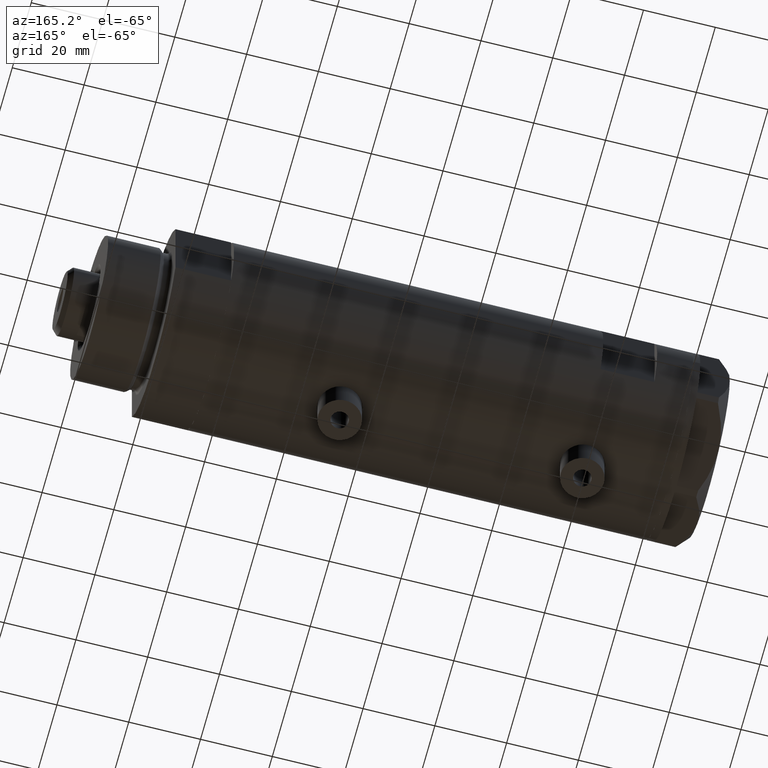
[diagram: clean part render]
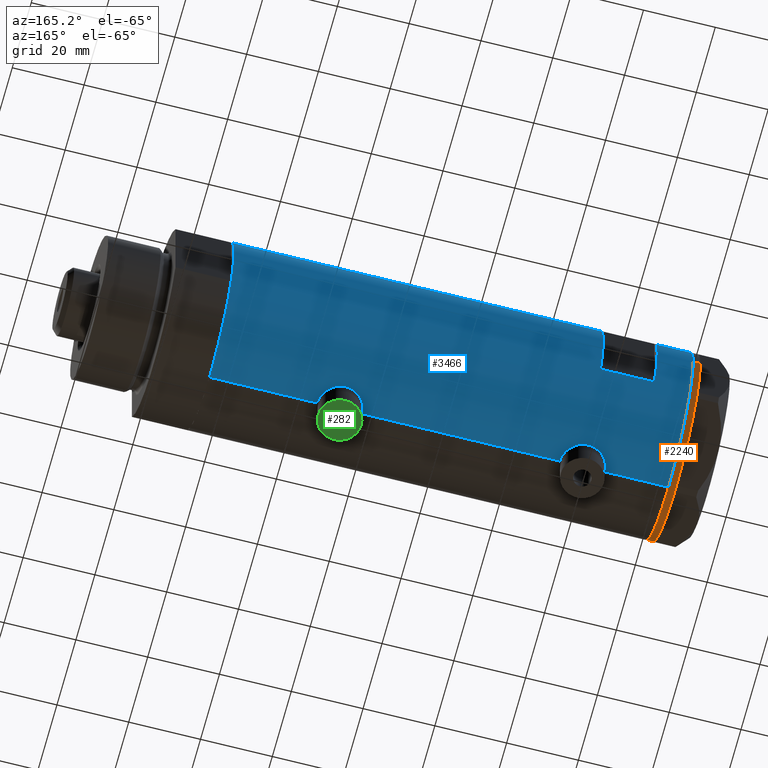
[diagram: same view with three faces highlighted in distinct colors, each labeled with its STEP entity id]
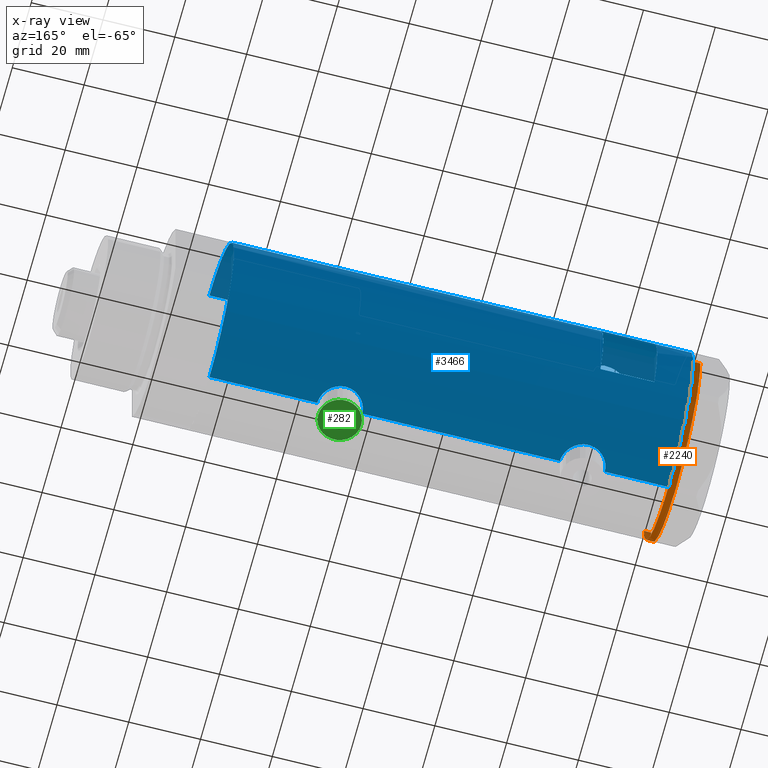
[diagram: x-ray of the same camera — body ghosted, the three highlighted faces saturated]
A machine part, auxiliary view with three faces highlighted in distinct colors.
The next image is the same camera in x-ray (body ghosted, the three faces saturated) — at least one of them is partly hidden behind the body in this view.
Their STEP definitions:

[orange] entity #2240 — the highlighted cylindrical surface (partial cylindrical patch) has radius 26 mm, axis along (-1, -0, 0).
#9 = EDGE_CURVE ( 'NONE', #4826, #2957, #760, .T. ) ;
#160 = ORIENTED_EDGE ( 'NONE', *, *, #1437, .T. ) ;
#162 = CARTESIAN_POINT ( 'NONE',  ( 0.000000000000000000, 0.000000000000000000, 0.000000000000000000 ) ) ;
#182 = DIRECTION ( 'NONE',  ( 1.000000000000000000, 0.000000000000000000, 0.000000000000000000 ) ) ;
#186 = EDGE_CURVE ( 'NONE', #3309, #3144, #4546, .T. ) ;
#212 = VERTEX_POINT ( 'NONE', #2292 ) ;
#262 = DIRECTION ( 'NONE',  ( 0.000000000000000000, 0.000000000000000000, -1.000000000000000000 ) ) ;
#362 = VECTOR ( 'NONE', #978, 1000.000000000000000 ) ;
#364 = AXIS2_PLACEMENT_3D ( 'NONE', #3634, #2841, #4871 ) ;
#410 = EDGE_CURVE ( 'NONE', #1890, #3309, #2145, .T. ) ;
#423 = CARTESIAN_POINT ( 'NONE',  ( -0.9999999999999089617, 25.98076211353316367, 0.000000000000000000 ) ) ;
#424 = VERTEX_POINT ( 'NONE', #4936 ) ;
#428 = DIRECTION ( 'NONE',  ( -1.000000000000000000, 0.000000000000000000, 0.000000000000000000 ) ) ;
#434 = EDGE_CURVE ( 'NONE', #2950, #1837, #3548, .T. ) ;
#460 = DIRECTION ( 'NONE',  ( 0.000000000000000000, 0.000000000000000000, -1.000000000000000000 ) ) ;
#558 = CARTESIAN_POINT ( 'NONE',  ( 22.35837924876908289, 13.27037593168378216, 0.000000000000000000 ) ) ;
#580 = CARTESIAN_POINT ( 'NONE',  ( -22.00000000000008171, 13.85640646055089498, 0.000000000000000000 ) ) ;
#624 = VERTEX_POINT ( 'NONE', #5006 ) ;
#662 = ORIENTED_EDGE ( 'NONE', *, *, #2180, .T. ) ;
#680 = CIRCLE ( 'NONE', #3625, 26.00000000000000355 ) ;
#743 = ORIENTED_EDGE ( 'NONE', *, *, #2911, .F. ) ;
#753 = VERTEX_POINT ( 'NONE', #4030 ) ;
#760 = CIRCLE ( 'NONE', #2949, 26.00000000000000355 ) ;
#777 = ORIENTED_EDGE ( 'NONE', *, *, #9, .T. ) ;
#870 = VERTEX_POINT ( 'NONE', #2152 ) ;
#918 = CARTESIAN_POINT ( 'NONE',  ( -22.35837924876937066, 13.27037593168329543, 0.000000000000000000 ) ) ;
#951 = CARTESIAN_POINT ( 'NONE',  ( -22.99999999999999289, 12.12435565298215856, 0.000000000000000000 ) ) ;
#978 = DIRECTION ( 'NONE',  ( -0.000000000000000000, -0.000000000000000000, 1.000000000000000000 ) ) ;
#1077 = CARTESIAN_POINT ( 'NONE',  ( 0.000000000000000000, 0.000000000000000000, 0.000000000000000000 ) ) ;
#1100 = AXIS2_PLACEMENT_3D ( 'NONE', #3776, #5024, #3477 ) ;
#1119 = AXIS2_PLACEMENT_3D ( 'NONE', #1253, #460, #428 ) ;
#1142 = CARTESIAN_POINT ( 'NONE',  ( 26.00000000000000355, 0.000000000000000000, -2.000000000000000000 ) ) ;
#1218 = CARTESIAN_POINT ( 'NONE',  ( 26.00000000000000355, 0.000000000000000000, 0.000000000000000000 ) ) ;
#1253 = CARTESIAN_POINT ( 'NONE',  ( 0.000000000000000000, 0.000000000000000000, 0.000000000000000000 ) ) ;
#1269 = EDGE_CURVE ( 'NONE', #424, #870, #3755, .T. ) ;
#1282 = EDGE_CURVE ( 'NONE', #2957, #5092, #3137, .T. ) ;
#1328 = DIRECTION ( 'NONE',  ( 0.000000000000000000, 0.000000000000000000, -1.000000000000000000 ) ) ;
#1402 = DIRECTION ( 'NONE',  ( 0.000000000000000000, 0.000000000000000000, -1.000000000000000000 ) ) ;
#1437 = EDGE_CURVE ( 'NONE', #624, #4826, #1760, .T. ) ;
#1505 = DIRECTION ( 'NONE',  ( -1.000000000000000000, 0.000000000000000000, 0.000000000000000000 ) ) ;
#1509 = ORIENTED_EDGE ( 'NONE', *, *, #434, .T. ) ;
#1528 = CARTESIAN_POINT ( 'NONE',  ( 22.67167229899213510, 12.72773645103923990, 0.000000000000000000 ) ) ;
#1635 = CARTESIAN_POINT ( 'NONE',  ( -26.00000000000000355, 3.184081677783118585E-15, 0.000000000000000000 ) ) ;
#1724 = EDGE_CURVE ( 'NONE', #2810, #424, #2465, .T. ) ;
#1730 = DIRECTION ( 'NONE',  ( -1.000000000000000000, 0.000000000000000000, 0.000000000000000000 ) ) ;
#1735 = DIRECTION ( 'NONE',  ( 0.000000000000000000, 0.000000000000000000, -1.000000000000000000 ) ) ;
#1754 = DIRECTION ( 'NONE',  ( -1.000000000000000000, 0.000000000000000000, 0.000000000000000000 ) ) ;
#1755 = CARTESIAN_POINT ( 'NONE',  ( -22.67167229899207115, 12.72773645103935003, 0.000000000000000000 ) ) ;
#1760 = LINE ( 'NONE', #3718, #362 ) ;
#1776 = AXIS2_PLACEMENT_3D ( 'NONE', #4255, #262, #1754 ) ;
#1807 = DIRECTION ( 'NONE',  ( -1.000000000000000000, 0.000000000000000000, 0.000000000000000000 ) ) ;
#1810 = CARTESIAN_POINT ( 'NONE',  ( 22.56942594318079642, 12.90986591935734218, 0.000000000000000000 ) ) ;
#1836 = DIRECTION ( 'NONE',  ( -1.000000000000000000, 0.000000000000000000, 0.000000000000000000 ) ) ;
#1837 = VERTEX_POINT ( 'NONE', #580 ) ;
#1890 = VERTEX_POINT ( 'NONE', #3527 ) ;
#2007 = DIRECTION ( 'NONE',  ( -0.000000000000000000, -0.000000000000000000, 1.000000000000000000 ) ) ;
#2074 = VERTEX_POINT ( 'NONE', #1218 ) ;
#2090 = ORIENTED_EDGE ( 'NONE', *, *, #410, .T. ) ;
#2092 = CARTESIAN_POINT ( 'NONE',  ( 0.3132930502238189252, 25.99811238272274139, 0.000000000000000000 ) ) ;
#2133 = AXIS2_PLACEMENT_3D ( 'NONE', #2181, #3775, #182 ) ;
#2145 = B_SPLINE_CURVE_WITH_KNOTS ( 'NONE', 3,
 ( #558, #4959, #1810, #1528 ),
 .UNSPECIFIED., .F., .F.,
 ( 4, 4 ),
 ( 0.000000000000000000, 1.000000000000000000 ),
 .UNSPECIFIED. ) ;
#2152 = CARTESIAN_POINT ( 'NONE',  ( 0.3132930502238189252, 25.99811238272274139, 0.000000000000000000 ) ) ;
#2180 = EDGE_CURVE ( 'NONE', #870, #2512, #2973, .T. ) ;
#2181 = CARTESIAN_POINT ( 'NONE',  ( 0.000000000000000000, 0.000000000000000000, -2.000000000000000000 ) ) ;
#2218 = ORIENTED_EDGE ( 'NONE', *, *, #3432, .T. ) ;
#2240 = ADVANCED_FACE ( 'NONE', ( #4521 ), #4895, .T. ) ;
#2292 = CARTESIAN_POINT ( 'NONE',  ( 21.99999999999987210, 13.85640646055121827, 0.000000000000000000 ) ) ;
#2361 = ORIENTED_EDGE ( 'NONE', *, *, #4921, .T. ) ;
#2403 = DIRECTION ( 'NONE',  ( -1.000000000000000000, 0.000000000000000000, 0.000000000000000000 ) ) ;
#2465 = CIRCLE ( 'NONE', #364, 26.00000000000000355 ) ;
#2500 = EDGE_CURVE ( 'NONE', #5092, #2950, #4196, .T. ) ;
#2512 = VERTEX_POINT ( 'NONE', #4470 ) ;
#2529 = CARTESIAN_POINT ( 'NONE',  ( 0.000000000000000000, 0.000000000000000000, 0.000000000000000000 ) ) ;
#2564 = AXIS2_PLACEMENT_3D ( 'NONE', #3587, #4743, #2403 ) ;
#2624 = CARTESIAN_POINT ( 'NONE',  ( 22.67167229899213510, 12.72773645103923990, 0.000000000000000000 ) ) ;
#2800 = ORIENTED_EDGE ( 'NONE', *, *, #1724, .T. ) ;
#2810 = VERTEX_POINT ( 'NONE', #423 ) ;
#2841 = DIRECTION ( 'NONE',  ( 0.000000000000000000, 0.000000000000000000, -1.000000000000000000 ) ) ;
#2905 = EDGE_CURVE ( 'NONE', #2512, #212, #3415, .T. ) ;
#2911 = EDGE_CURVE ( 'NONE', #753, #2074, #4427, .T. ) ;
#2949 = AXIS2_PLACEMENT_3D ( 'NONE', #4240, #1402, #1505 ) ;
#2950 = VERTEX_POINT ( 'NONE', #4553 ) ;
#2957 = VERTEX_POINT ( 'NONE', #951 ) ;
#2973 = CIRCLE ( 'NONE', #3059, 26.00000000000000355 ) ;
#3059 = AXIS2_PLACEMENT_3D ( 'NONE', #162, #3369, #1730 ) ;
#3078 = EDGE_CURVE ( 'NONE', #1837, #2810, #3579, .T. ) ;
#3087 = DIRECTION ( 'NONE',  ( 0.000000000000000000, 0.000000000000000000, -1.000000000000000000 ) ) ;
#3107 = ORIENTED_EDGE ( 'NONE', *, *, #2905, .T. ) ;
#3137 = CIRCLE ( 'NONE', #1119, 26.00000000000000355 ) ;
#3144 = VERTEX_POINT ( 'NONE', #4686 ) ;
#3213 = CARTESIAN_POINT ( 'NONE',  ( -22.67167229899207115, 12.72773645103935003, 0.000000000000000000 ) ) ;
#3309 = VERTEX_POINT ( 'NONE', #2624 ) ;
#3346 = ORIENTED_EDGE ( 'NONE', *, *, #186, .T. ) ;
#3369 = DIRECTION ( 'NONE',  ( 0.000000000000000000, 0.000000000000000000, -1.000000000000000000 ) ) ;
#3390 = CIRCLE ( 'NONE', #1776, 26.00000000000000355 ) ;
#3415 = CIRCLE ( 'NONE', #2564, 26.00000000000000355 ) ;
#3432 = EDGE_CURVE ( 'NONE', #212, #1890, #4202, .T. ) ;
#3477 = DIRECTION ( 'NONE',  ( -1.000000000000000000, 0.000000000000000000, 0.000000000000000000 ) ) ;
#3527 = CARTESIAN_POINT ( 'NONE',  ( 22.35837924876908289, 13.27037593168378216, 0.000000000000000000 ) ) ;
#3548 = CIRCLE ( 'NONE', #4719, 26.00000000000000355 ) ;
#3579 = CIRCLE ( 'NONE', #4157, 26.00000000000000355 ) ;
#3587 = CARTESIAN_POINT ( 'NONE',  ( 0.000000000000000000, 0.000000000000000000, 0.000000000000000000 ) ) ;
#3602 = DIRECTION ( 'NONE',  ( 0.000000000000000000, 0.000000000000000000, -1.000000000000000000 ) ) ;
#3625 = AXIS2_PLACEMENT_3D ( 'NONE', #4935, #1328, #4583 ) ;
#3634 = CARTESIAN_POINT ( 'NONE',  ( 0.000000000000000000, 0.000000000000000000, 0.000000000000000000 ) ) ;
#3718 = CARTESIAN_POINT ( 'NONE',  ( -26.00000000000000355, 3.184081677783118585E-15, -2.000000000000000000 ) ) ;
#3755 = B_SPLINE_CURVE_WITH_KNOTS ( 'NONE', 3,
 ( #4879, #4027, #4857, #2092 ),
 .UNSPECIFIED., .F., .F.,
 ( 4, 4 ),
 ( 0.000000000000000000, 1.000000000000000000 ),
 .UNSPECIFIED. ) ;
#3775 = DIRECTION ( 'NONE',  ( -0.000000000000000000, -0.000000000000000000, 1.000000000000000000 ) ) ;
#3776 = CARTESIAN_POINT ( 'NONE',  ( 0.000000000000000000, 0.000000000000000000, 0.000000000000000000 ) ) ;
#3989 = VECTOR ( 'NONE', #2007, 1000.000000000000000 ) ;
#4027 = CARTESIAN_POINT ( 'NONE',  ( -0.1044411259765276462, 26.00062917530480888, 0.000000000000000000 ) ) ;
#4030 = CARTESIAN_POINT ( 'NONE',  ( 26.00000000000000355, 0.000000000000000000, -2.000000000000000000 ) ) ;
#4073 = CARTESIAN_POINT ( 'NONE',  ( -22.56942594318084616, 12.90986591935725158, 0.000000000000000000 ) ) ;
#4157 = AXIS2_PLACEMENT_3D ( 'NONE', #2529, #1735, #1807 ) ;
#4196 = B_SPLINE_CURVE_WITH_KNOTS ( 'NONE', 3,
 ( #1755, #4073, #4548, #918 ),
 .UNSPECIFIED., .F., .F.,
 ( 4, 4 ),
 ( 0.000000000000000000, 1.000000000000000000 ),
 .UNSPECIFIED. ) ;
#4202 = CIRCLE ( 'NONE', #1100, 26.00000000000000355 ) ;
#4240 = CARTESIAN_POINT ( 'NONE',  ( 0.000000000000000000, 0.000000000000000000, 0.000000000000000000 ) ) ;
#4255 = CARTESIAN_POINT ( 'NONE',  ( 0.000000000000000000, 0.000000000000000000, 0.000000000000000000 ) ) ;
#4265 = EDGE_CURVE ( 'NONE', #624, #753, #680, .T. ) ;
#4280 = DIRECTION ( 'NONE',  ( -1.000000000000000000, 0.000000000000000000, 0.000000000000000000 ) ) ;
#4320 = ORIENTED_EDGE ( 'NONE', *, *, #3078, .T. ) ;
#4325 = ORIENTED_EDGE ( 'NONE', *, *, #1282, .T. ) ;
#4427 = LINE ( 'NONE', #1142, #3989 ) ;
#4464 = AXIS2_PLACEMENT_3D ( 'NONE', #1077, #3602, #4280 ) ;
#4470 = CARTESIAN_POINT ( 'NONE',  ( 0.9999999999999297229, 25.98076211353316722, 0.000000000000000000 ) ) ;
#4507 = ORIENTED_EDGE ( 'NONE', *, *, #4265, .F. ) ;
#4521 = FACE_OUTER_BOUND ( 'NONE', #5063, .T. ) ;
#4546 = CIRCLE ( 'NONE', #4464, 26.00000000000000355 ) ;
#4548 = CARTESIAN_POINT ( 'NONE',  ( -22.46498481720481877, 13.09076325594744006, 0.000000000000000000 ) ) ;
#4553 = CARTESIAN_POINT ( 'NONE',  ( -22.35837924876937066, 13.27037593168329543, 0.000000000000000000 ) ) ;
#4583 = DIRECTION ( 'NONE',  ( -1.000000000000000000, 0.000000000000000000, 0.000000000000000000 ) ) ;
#4620 = ORIENTED_EDGE ( 'NONE', *, *, #1269, .T. ) ;
#4686 = CARTESIAN_POINT ( 'NONE',  ( 22.99999999999982592, 12.12435565298247653, 0.000000000000000000 ) ) ;
#4719 = AXIS2_PLACEMENT_3D ( 'NONE', #5086, #3087, #1836 ) ;
#4743 = DIRECTION ( 'NONE',  ( 0.000000000000000000, 0.000000000000000000, -1.000000000000000000 ) ) ;
#4826 = VERTEX_POINT ( 'NONE', #1635 ) ;
#4857 = CARTESIAN_POINT ( 'NONE',  ( 0.1044411259763403238, 26.00062917530480888, 0.000000000000000000 ) ) ;
#4871 = DIRECTION ( 'NONE',  ( -1.000000000000000000, 0.000000000000000000, 0.000000000000000000 ) ) ;
#4879 = CARTESIAN_POINT ( 'NONE',  ( -0.3132930502240048320, 25.99811238272273783, 0.000000000000000000 ) ) ;
#4895 = CYLINDRICAL_SURFACE ( 'NONE', #2133, 26.00000000000000355 ) ;
#4921 = EDGE_CURVE ( 'NONE', #3144, #2074, #3390, .T. ) ;
#4935 = CARTESIAN_POINT ( 'NONE',  ( 0.000000000000000000, 0.000000000000000000, -2.000000000000000000 ) ) ;
#4936 = CARTESIAN_POINT ( 'NONE',  ( -0.3132930502240048320, 25.99811238272273783, 0.000000000000000000 ) ) ;
#4959 = CARTESIAN_POINT ( 'NONE',  ( 22.46498481720465179, 13.09076325594772960, 0.000000000000000000 ) ) ;
#5006 = CARTESIAN_POINT ( 'NONE',  ( -26.00000000000000355, 3.184081677783118585E-15, -2.000000000000000000 ) ) ;
#5024 = DIRECTION ( 'NONE',  ( 0.000000000000000000, 0.000000000000000000, -1.000000000000000000 ) ) ;
#5063 = EDGE_LOOP ( 'NONE', ( #4507, #160, #777, #4325, #5148, #1509, #4320, #2800, #4620, #662, #3107, #2218, #2090, #3346, #2361, #743 ) ) ;
#5086 = CARTESIAN_POINT ( 'NONE',  ( 0.000000000000000000, 0.000000000000000000, 0.000000000000000000 ) ) ;
#5092 = VERTEX_POINT ( 'NONE', #3213 ) ;
#5148 = ORIENTED_EDGE ( 'NONE', *, *, #2500, .T. ) ;

[blue] entity #3466 — the highlighted cylindrical surface (partial cylindrical patch) has radius 26 mm, axis along (-1, -0, 0).
#6 = CARTESIAN_POINT ( 'NONE',  ( 25.89067367629245808, 2.424883365422559223, -17.63594795494831402 ) ) ;
#10 = CARTESIAN_POINT ( 'NONE',  ( 24.95233689475078975, 7.306396477445178839, 42.73896186853335877 ) ) ;
#38 = CARTESIAN_POINT ( 'NONE',  ( 25.11550258961939974, 6.725017566862028673, 47.77928477806020169 ) ) ;
#65 = ORIENTED_EDGE ( 'NONE', *, *, #4133, .T. ) ;
#74 = EDGE_CURVE ( 'NONE', #3150, #839, #2864, .T. ) ;
#91 = DIRECTION ( 'NONE',  ( 0.000000000000000000, 0.000000000000000000, 1.000000000000000000 ) ) ;
#121 = CARTESIAN_POINT ( 'NONE',  ( -25.85406084573620689, 2.777003695811653738, 45.56412841326093854 ) ) ;
#148 = CARTESIAN_POINT ( 'NONE',  ( -26.00000000000000355, -2.813058302341337106E-16, 46.20000000000000284 ) ) ;
#167 = CARTESIAN_POINT ( 'NONE',  ( -25.33346170681503651, 5.849967696906715808, -25.44052947900492967 ) ) ;
#203 = VECTOR ( 'NONE', #2821, 1000.000000000000000 ) ;
#249 = EDGE_CURVE ( 'NONE', #3170, #482, #5122, .T. ) ;
#253 = CARTESIAN_POINT ( 'NONE',  ( 25.52465069878074644, 4.952713637311401129, 38.81255139184744962 ) ) ;
#296 = CARTESIAN_POINT ( 'NONE',  ( -25.95208098418916620, 1.628413954368980399, 33.90193207829285882 ) ) ;
#310 = CARTESIAN_POINT ( 'NONE',  ( 26.00000000000000355, 0.4983968644076020582, 36.95000000000000284 ) ) ;
#312 = EDGE_CURVE ( 'NONE', #3012, #4081, #2067, .T. ) ;
#317 = VERTEX_POINT ( 'NONE', #4563 ) ;
#328 = CARTESIAN_POINT ( 'NONE',  ( 25.17424625143662809, 6.506691718592095164, -28.51241626033727528 ) ) ;
#352 = CARTESIAN_POINT ( 'NONE',  ( 25.63006864069250668, 4.375159448492144776, -30.84654411758883086 ) ) ;
#360 = CARTESIAN_POINT ( 'NONE',  ( 25.20855488770173380, 6.367749707222643885, -20.77997776959044174 ) ) ;
#366 = DIRECTION ( 'NONE',  ( 0.000000000000000000, 0.000000000000000000, 1.000000000000000000 ) ) ;
#374 = CARTESIAN_POINT ( 'NONE',  ( -25.99999999999999289, 0.2043916521039002843, -33.90000000000000568 ) ) ;
#390 = CARTESIAN_POINT ( 'NONE',  ( 24.89484527721569762, 7.499778575171895945, 43.95449194517064484 ) ) ;
#391 = FACE_OUTER_BOUND ( 'NONE', #3397, .T. ) ;
#398 = CARTESIAN_POINT ( 'NONE',  ( -25.95208098418916975, 1.628413954368980843, -33.69806792170715681 ) ) ;
#414 = CARTESIAN_POINT ( 'NONE',  ( 25.72868876879096689, 3.768709330223694920, 50.95267486870066165 ) ) ;
#443 = CARTESIAN_POINT ( 'NONE',  ( 26.00000000000000355, 0.000000000000000000, -63.95000000000000995 ) ) ;
#467 = CARTESIAN_POINT ( 'NONE',  ( 25.99652140603931016, 0.4914164889130518965, 51.93796820480458365 ) ) ;
#475 = EDGE_CURVE ( 'NONE', #839, #2405, #3208, .T. ) ;
#482 = VERTEX_POINT ( 'NONE', #1568 ) ;
#500 = B_SPLINE_CURVE_WITH_KNOTS ( 'NONE', 3,
 ( #148, #1397, #4902, #3354, #950, #1782, #1304, #121, #1734, #4955, #4604, #2082, #1346, #974, #5007, #995, #2943, #1712, #4550, #2557, #4153, #3329, #4932, #1326, #2920, #554, #1756, #2677, #4200, #1446, #1887, #3812, #3026, #2262, #677, #3889, #1049, #2239, #296, #1475, #1858, #5029, #4281, #3133 ),
 .UNSPECIFIED., .F., .F.,
 ( 4, 2, 2, 2, 2, 2, 2, 2, 2, 2, 2, 2, 2, 2, 2, 2, 2, 2, 2, 2, 2, 4 ),
 ( 2.732276935479321607E-19, 0.001225774033668403139, 0.001838661050502602649, 0.002451548067336802375, 0.003677322101005202262, 0.004903096134673601281, 0.006128870168342001601, 0.007354644202010401054, 0.007967531218844600346, 0.008580418235678800506, 0.009806192269347199092, 0.01103196630301559768, 0.01225774033668399626, 0.01287062735351819469, 0.01348351437035239485, 0.01409640138718659501, 0.01470928840402079343, 0.01593506243768920069, 0.01716083647135761142, 0.01838661050502602215, 0.01899949752186022578, 0.01961238453869442941 ),
 .UNSPECIFIED. ) ;
#524 = CIRCLE ( 'NONE', #1531, 26.00000000000000355 ) ;
#554 = CARTESIAN_POINT ( 'NONE',  ( -25.36894112891956965, 5.694149517195234544, 37.36517494801692862 ) ) ;
#564 = VERTEX_POINT ( 'NONE', #3450 ) ;
#571 = VECTOR ( 'NONE', #2346, 1000.000000000000000 ) ;
#643 = CARTESIAN_POINT ( 'NONE',  ( 25.72923282622329211, 3.765147152416744802, 37.94514424215291371 ) ) ;
#666 = CARTESIAN_POINT ( 'NONE',  ( 25.98569222077104257, 0.9879514382926377625, 36.99918153312438562 ) ) ;
#667 = DIRECTION ( 'NONE',  ( 0.000000000000000000, 0.000000000000000000, 1.000000000000000000 ) ) ;
#673 = VECTOR ( 'NONE', #2517, 1000.000000000000000 ) ;
#677 = CARTESIAN_POINT ( 'NONE',  ( -25.72087293759780380, 3.814831448865741770, 34.98261705172143365 ) ) ;
#736 = CARTESIAN_POINT ( 'NONE',  ( -25.38875076695535782, 5.605452563035137281, -30.42185900824106426 ) ) ;
#741 = CARTESIAN_POINT ( 'NONE',  ( 25.03487248886524341, 7.018875226450789206, -27.40423217392064359 ) ) ;
#766 = CARTESIAN_POINT ( 'NONE',  ( 24.89484527721569052, 7.499778575171893280, -25.24550805482937932 ) ) ;
#774 = CARTESIAN_POINT ( 'NONE',  ( 25.11550258961939619, 6.725017566862034002, -21.42071522193981181 ) ) ;
#790 = CARTESIAN_POINT ( 'NONE',  ( -25.85449082491264861, 2.772892880050691122, -33.26609297485325101 ) ) ;
#796 = VERTEX_POINT ( 'NONE', #1313 ) ;
#801 = CARTESIAN_POINT ( 'NONE',  ( 26.00000000000001066, 0.2455784580650491045, -17.25000000000000355 ) ) ;
#839 = VERTEX_POINT ( 'NONE', #3440 ) ;
#881 = CARTESIAN_POINT ( 'NONE',  ( 25.99999999999999645, 0.2455784580650500204, 51.94999999999998863 ) ) ;
#894 = DIRECTION ( 'NONE',  ( 1.000000000000000000, 0.000000000000000000, 0.000000000000000000 ) ) ;
#930 = B_SPLINE_CURVE_WITH_KNOTS ( 'NONE', 3,
 ( #3057, #3377, #3486, #4282, #4662, #1447, #5030, #1833, #2165, #3027, #1783, #3452, #1021, #976, #3760, #167, #2979, #2263, #4581, #3409, #2582, #3004, #4605, #996, #4628, #5054, #736, #3938, #4707, #2712, #3189, #3584, #3164, #1499, #4367, #4817, #790, #2788, #398, #1219, #4761, #3106, #374, #3556 ),
 .UNSPECIFIED., .F., .F.,
 ( 4, 2, 2, 2, 2, 2, 2, 2, 2, 2, 2, 2, 2, 2, 2, 2, 2, 2, 2, 2, 2, 4 ),
 ( 9.607684875373755967E-19, 0.001225774033668407042, 0.001838661050502609588, 0.002451548067336812350, 0.003677322101005213971, 0.004903096134673616026, 0.006128870168342016346, 0.007354644202010416666, 0.007967531218844617694, 0.008580418235678816119, 0.009806192269347225113, 0.01103196630301563584, 0.01225774033668404484, 0.01287062735351825020, 0.01348351437035245383, 0.01409640138718665919, 0.01470928840402086456, 0.01593506243768925273, 0.01716083647135764612, 0.01838661050502603603, 0.01899949752186023272, 0.01961238453869442941 ),
 .UNSPECIFIED. ) ;
#947 = DIRECTION ( 'NONE',  ( -0.000000000000000000, -0.000000000000000000, -1.000000000000000000 ) ) ;
#950 = CARTESIAN_POINT ( 'NONE',  ( -25.95015815577423268, 1.621168830448741938, 45.98958570439819482 ) ) ;
#974 = CARTESIAN_POINT ( 'NONE',  ( -25.42927140605241121, 5.422776733968213136, 43.08443996013281918 ) ) ;
#976 = CARTESIAN_POINT ( 'NONE',  ( -25.42927140605240766, 5.422776733968210472, -24.51556003986717513 ) ) ;
#995 = CARTESIAN_POINT ( 'NONE',  ( -25.33346170681504717, 5.849967696906719361, 42.15947052099510017 ) ) ;
#996 = CARTESIAN_POINT ( 'NONE',  ( -25.28673619335055633, 6.048783215285168602, -29.27550990348179027 ) ) ;
#1021 = CARTESIAN_POINT ( 'NONE',  ( -25.52242378584899640, 4.965907353613392416, -23.83280397078263491 ) ) ;
#1049 = CARTESIAN_POINT ( 'NONE',  ( -25.85449082491264861, 2.772892880050687126, 34.33390702514679305 ) ) ;
#1064 = CARTESIAN_POINT ( 'NONE',  ( 25.38132706741445688, 5.649034551923787895, 39.49268047185955766 ) ) ;
#1085 = DIRECTION ( 'NONE',  ( -1.000000000000000000, -5.329070518200751394E-15, 0.000000000000000000 ) ) ;
#1098 = CARTESIAN_POINT ( 'NONE',  ( 25.89067367629246164, 2.424883365422555670, 51.56405204505168172 ) ) ;
#1125 = VECTOR ( 'NONE', #4927, 1000.000000000000000 ) ;
#1144 = CARTESIAN_POINT ( 'NONE',  ( 25.38132706741445332, 5.649034551923782566, -29.70731952814044874 ) ) ;
#1155 = CARTESIAN_POINT ( 'NONE',  ( 24.89471231507667071, 7.500219916954787180, 44.93878226883029470 ) ) ;
#1169 = CARTESIAN_POINT ( 'NONE',  ( 24.95233689475078265, 7.306396477445174398, -26.46103813146666184 ) ) ;
#1202 = CARTESIAN_POINT ( 'NONE',  ( 25.52590365620542556, 4.955152228772148781, -19.09876272411762343 ) ) ;
#1210 = CARTESIAN_POINT ( 'NONE',  ( 24.97016856345953073, 7.245430721349219283, 42.49696959080609560 ) ) ;
#1219 = CARTESIAN_POINT ( 'NONE',  ( -25.98057228346869252, 1.024901789261879914, -33.81880585854828070 ) ) ;
#1275 = AXIS2_PLACEMENT_3D ( 'NONE', #2759, #366, #3158 ) ;
#1304 = CARTESIAN_POINT ( 'NONE',  ( -25.90661719257679252, 2.209805098346976138, 45.79988745781523107 ) ) ;
#1313 = CARTESIAN_POINT ( 'NONE',  ( -26.00000000000000355, 3.184077527313362130E-15, 33.70000000000000995 ) ) ;
#1326 = CARTESIAN_POINT ( 'NONE',  ( -25.28673619335055278, 6.048783215285168602, 38.32449009651820404 ) ) ;
#1337 = ORIENTED_EDGE ( 'NONE', *, *, #1812, .T. ) ;
#1346 = CARTESIAN_POINT ( 'NONE',  ( -25.52242378584899285, 4.965907353613394193, 43.76719602921738783 ) ) ;
#1397 = CARTESIAN_POINT ( 'NONE',  ( -26.00000000000000711, 0.4145874687851189289, 46.20000000000000995 ) ) ;
#1446 = CARTESIAN_POINT ( 'NONE',  ( -25.49884629689154281, 5.081547904122033721, 36.30560194303910748 ) ) ;
#1447 = CARTESIAN_POINT ( 'NONE',  ( -25.92257874449350297, 2.014648337067150408, -21.73003581636323389 ) ) ;
#1448 = DIRECTION ( 'NONE',  ( 1.000000000000000000, -5.329070518200751394E-15, 0.000000000000000000 ) ) ;
#1475 = CARTESIAN_POINT ( 'NONE',  ( -25.98057228346870673, 1.024901789261881913, 33.78119414145175625 ) ) ;
#1478 = CARTESIAN_POINT ( 'NONE',  ( 0.000000000000000000, 0.000000000000000000, 53.94999999999999574 ) ) ;
#1489 = ORIENTED_EDGE ( 'NONE', *, *, #4915, .F. ) ;
#1499 = CARTESIAN_POINT ( 'NONE',  ( -25.67176285215958842, 4.128807479817787396, -32.35991598451124673 ) ) ;
#1512 = DIRECTION ( 'NONE',  ( 1.000000000000000000, 0.000000000000000000, 0.000000000000000000 ) ) ;
#1526 = CARTESIAN_POINT ( 'NONE',  ( 26.00000000000000355, 0.000000000000000000, -63.95000000000000995 ) ) ;
#1531 = AXIS2_PLACEMENT_3D ( 'NONE', #2661, #2121, #1085 ) ;
#1538 = CARTESIAN_POINT ( 'NONE',  ( 25.72923282622328855, 3.765147152416742138, -31.25485575784708203 ) ) ;
#1562 = CARTESIAN_POINT ( 'NONE',  ( 25.94484652078418208, 1.709678645892019899, -32.05665346759175804 ) ) ;
#1568 = CARTESIAN_POINT ( 'NONE',  ( 26.00000000000000355, -3.975025925197986111E-20, 51.95000000000000284 ) ) ;
#1573 = CARTESIAN_POINT ( 'NONE',  ( 25.08669247833291394, 6.831361936037319893, 47.55537739403791164 ) ) ;
#1591 = CARTESIAN_POINT ( 'NONE',  ( 25.59685363299822569, 4.579266302355748053, -18.79027931897347514 ) ) ;
#1672 = CARTESIAN_POINT ( 'NONE',  ( -26.00000000000000355, 3.184081677783118585E-15, -63.95000000000000995 ) ) ;
#1691 = CARTESIAN_POINT ( 'NONE',  ( -12.12435565298214080, 23.00000000000000355, -63.95000000000000995 ) ) ;
#1694 = EDGE_CURVE ( 'NONE', #2405, #3170, #2478, .T. ) ;
#1712 = CARTESIAN_POINT ( 'NONE',  ( -25.28915991580759837, 6.038390257328908106, 41.57552651146907863 ) ) ;
#1734 = CARTESIAN_POINT ( 'NONE',  ( -25.81251897318925614, 3.135439098787738743, 45.37199178085171525 ) ) ;
#1737 = CARTESIAN_POINT ( 'NONE',  ( -26.00000000000000355, 3.184081677783118585E-15, -63.95000000000000995 ) ) ;
#1749 = ORIENTED_EDGE ( 'NONE', *, *, #4517, .F. ) ;
#1756 = CARTESIAN_POINT ( 'NONE',  ( -25.38875076695534716, 5.605452563035134617, 37.17814099175895848 ) ) ;
#1782 = CARTESIAN_POINT ( 'NONE',  ( -25.92257874449351007, 2.014648337067150408, 45.86996418363678174 ) ) ;
#1783 = CARTESIAN_POINT ( 'NONE',  ( -25.67095236150574067, 4.133649689219789813, -22.94464771725742125 ) ) ;
#1812 = EDGE_CURVE ( 'NONE', #3150, #3600, #4818, .T. ) ;
#1822 = EDGE_LOOP ( 'NONE', ( #1749, #1489, #1985, #4222 ) ) ;
#1833 = CARTESIAN_POINT ( 'NONE',  ( -25.85406084573622110, 2.777003695811654183, -22.03587158673905222 ) ) ;
#1845 = CARTESIAN_POINT ( 'NONE',  ( 0.000000000000000000, 0.000000000000000000, 63.95000000000000995 ) ) ;
#1848 = EDGE_CURVE ( 'NONE', #3786, #796, #500, .T. ) ;
#1858 = CARTESIAN_POINT ( 'NONE',  ( -25.98789693408479451, 0.8193301824841956460, 33.75051019734654290 ) ) ;
#1887 = CARTESIAN_POINT ( 'NONE',  ( -25.52275868012767646, 4.960454986366448438, 36.14238370593368188 ) ) ;
#1899 = CARTESIAN_POINT ( 'NONE',  ( 25.92799636947105313, 1.948138538329398317, 37.20322312211785487 ) ) ;
#1913 = LINE ( 'NONE', #1526, #571 ) ;
#1922 = CARTESIAN_POINT ( 'NONE',  ( 25.11254978876590016, 6.737777305585156640, -28.08025351746412213 ) ) ;
#1927 = CARTESIAN_POINT ( 'NONE',  ( 25.11254978876589661, 6.737777305585160192, 41.11974648253589493 ) ) ;
#1943 = VECTOR ( 'NONE', #3356, 1000.000000000000000 ) ;
#1955 = CARTESIAN_POINT ( 'NONE',  ( 24.90976107960111818, 7.450765568638821890, -23.76117130648535891 ) ) ;
#1961 = CARTESIAN_POINT ( 'NONE',  ( 25.98255381630415783, 0.9836221648041323373, -17.31066901941807501 ) ) ;
#1969 = CARTESIAN_POINT ( 'NONE',  ( 24.90951684770588059, 7.451587374037537792, 43.46604395478804861 ) ) ;
#1972 = ORIENTED_EDGE ( 'NONE', *, *, #3723, .T. ) ;
#1985 = ORIENTED_EDGE ( 'NONE', *, *, #4411, .F. ) ;
#1989 = CARTESIAN_POINT ( 'NONE',  ( 25.17636585680006078, 6.493453152855879651, -20.98900750337198318 ) ) ;
#1994 = CARTESIAN_POINT ( 'NONE',  ( 25.38117076385347914, 5.641057083563588925, 49.39856579741849174 ) ) ;
#2013 = ORIENTED_EDGE ( 'NONE', *, *, #1848, .F. ) ;
#2017 = CARTESIAN_POINT ( 'NONE',  ( 25.78997056644825392, 3.329333406239039839, 51.18834808433847883 ) ) ;
#2018 = CARTESIAN_POINT ( 'NONE',  ( 12.12435565298213724, 23.00000000000000355, 38.94999999999999574 ) ) ;
#2027 = VECTOR ( 'NONE', #3709, 1000.000000000000000 ) ;
#2029 = AXIS2_PLACEMENT_3D ( 'NONE', #1845, #667, #1512 ) ;
#2067 = LINE ( 'NONE', #1691, #4804 ) ;
#2082 = CARTESIAN_POINT ( 'NONE',  ( -25.57189498399055338, 4.707763994471528157, 44.08090281055548587 ) ) ;
#2121 = DIRECTION ( 'NONE',  ( -0.000000000000000000, -0.000000000000000000, 1.000000000000000000 ) ) ;
#2156 = EDGE_CURVE ( 'NONE', #564, #796, #2551, .T. ) ;
#2165 = CARTESIAN_POINT ( 'NONE',  ( -25.81251897318926680, 3.135439098787736523, -22.22800821914827907 ) ) ;
#2210 = VERTEX_POINT ( 'NONE', #2914 ) ;
#2228 = CARTESIAN_POINT ( 'NONE',  ( 26.00000000000000355, -3.975025925197986111E-20, 51.95000000000000284 ) ) ;
#2239 = CARTESIAN_POINT ( 'NONE',  ( -25.92432690655986960, 2.018143994254070872, 34.02070577177285315 ) ) ;
#2252 = CARTESIAN_POINT ( 'NONE',  ( 25.63006864069250668, 4.375159448492148329, 38.35345588241117554 ) ) ;
#2262 = CARTESIAN_POINT ( 'NONE',  ( -25.67176285215957421, 4.128807479817785620, 35.24008401548878311 ) ) ;
#2263 = CARTESIAN_POINT ( 'NONE',  ( -25.28915991580759837, 6.038390257328908994, -26.02447348853095122 ) ) ;
#2276 = CARTESIAN_POINT ( 'NONE',  ( 25.59528664075984850, 4.573671112500303337, 38.50090496483275615 ) ) ;
#2317 = CARTESIAN_POINT ( 'NONE',  ( 25.97197502027376004, 1.230965554787593952, 51.85240824498373513 ) ) ;
#2337 = CARTESIAN_POINT ( 'NONE',  ( 25.27545867390325185, 6.096774941222090405, 48.82477406957965371 ) ) ;
#2346 = DIRECTION ( 'NONE',  ( 0.000000000000000000, 0.000000000000000000, 1.000000000000000000 ) ) ;
#2351 = CARTESIAN_POINT ( 'NONE',  ( 25.92799636947105668, 1.948138538329396319, -31.99677687788214797 ) ) ;
#2359 = CARTESIAN_POINT ( 'NONE',  ( 25.31017500740586357, 5.951503630041860227, 49.02049592637404629 ) ) ;
#2386 = CARTESIAN_POINT ( 'NONE',  ( 25.41763780493360514, 5.474943943663459933, -19.61823686211066686 ) ) ;
#2405 = VERTEX_POINT ( 'NONE', #4358 ) ;
#2410 = CARTESIAN_POINT ( 'NONE',  ( 25.72868876879096689, 3.768709330223691811, -18.24732513129934830 ) ) ;
#2413 = CARTESIAN_POINT ( 'NONE',  ( 25.52590365620542912, 4.955152228772151446, 50.10123727588237585 ) ) ;
#2449 = ORIENTED_EDGE ( 'NONE', *, *, #3181, .F. ) ;
#2478 = LINE ( 'NONE', #443, #203 ) ;
#2517 = DIRECTION ( 'NONE',  ( 0.000000000000000000, 0.000000000000000000, 1.000000000000000000 ) ) ;
#2538 = DIRECTION ( 'NONE',  ( 0.000000000000000000, 0.000000000000000000, 1.000000000000000000 ) ) ;
#2551 = LINE ( 'NONE', #3752, #1125 ) ;
#2557 = CARTESIAN_POINT ( 'NONE',  ( -25.24766879991037172, 6.209837761082653174, 40.76849569029695886 ) ) ;
#2582 = CARTESIAN_POINT ( 'NONE',  ( -25.23766275406408965, 6.249830297096024445, -27.23808095444882582 ) ) ;
#2625 = VECTOR ( 'NONE', #947, 1000.000000000000000 ) ;
#2650 = CARTESIAN_POINT ( 'NONE',  ( 25.98569222077105323, 0.9879514382926379845, -32.20081846687561722 ) ) ;
#2661 = CARTESIAN_POINT ( 'NONE',  ( 0.000000000000000000, 0.000000000000000000, 38.94999999999999574 ) ) ;
#2677 = CARTESIAN_POINT ( 'NONE',  ( -25.43062364804612230, 5.412314182902753679, 36.81772351419071043 ) ) ;
#2712 = CARTESIAN_POINT ( 'NONE',  ( -25.49884629689154636, 5.081547904122037274, -31.29439805696091526 ) ) ;
#2718 = CARTESIAN_POINT ( 'NONE',  ( -26.00000000000000355, 3.184081677783118585E-15, 63.95000000000000995 ) ) ;
#2737 = CARTESIAN_POINT ( 'NONE',  ( 24.96662810169870284, 7.257932614256869641, 46.40297309526737024 ) ) ;
#2759 = CARTESIAN_POINT ( 'NONE',  ( 0.000000000000000000, 0.000000000000000000, -63.95000000000000995 ) ) ;
#2769 = CARTESIAN_POINT ( 'NONE',  ( 25.59528664075984139, 4.573671112500301561, -30.69909503516727156 ) ) ;
#2788 = CARTESIAN_POINT ( 'NONE',  ( -25.92432690655986960, 2.018143994254072648, -33.57929422822715537 ) ) ;
#2804 = CARTESIAN_POINT ( 'NONE',  ( 25.97197502027376004, 1.230965554787594396, -17.34759175501625350 ) ) ;
#2811 = ORIENTED_EDGE ( 'NONE', *, *, #249, .F. ) ;
#2821 = DIRECTION ( 'NONE',  ( 0.000000000000000000, 0.000000000000000000, 1.000000000000000000 ) ) ;
#2864 = LINE ( 'NONE', #3299, #2027 ) ;
#2910 = LINE ( 'NONE', #4515, #673 ) ;
#2914 = CARTESIAN_POINT ( 'NONE',  ( 26.00000000000000355, 0.000000000000000000, 63.95000000000000995 ) ) ;
#2920 = CARTESIAN_POINT ( 'NONE',  ( -25.31518616157687163, 5.930210831981637121, 37.93412882792974727 ) ) ;
#2943 = CARTESIAN_POINT ( 'NONE',  ( -25.31738333113901973, 5.918941409682879851, 41.96757922472325220 ) ) ;
#2979 = CARTESIAN_POINT ( 'NONE',  ( -25.31738333113901263, 5.918941409682878962, -25.63242077527679186 ) ) ;
#2981 = LINE ( 'NONE', #1737, #1943 ) ;
#3004 = CARTESIAN_POINT ( 'NONE',  ( -25.23757896588370642, 6.250168635417626462, -28.05675308410501501 ) ) ;
#3012 = VERTEX_POINT ( 'NONE', #4446 ) ;
#3021 = CARTESIAN_POINT ( 'NONE',  ( 26.00000000000001776, 0.4983968644076017251, -32.25000000000001421 ) ) ;
#3026 = CARTESIAN_POINT ( 'NONE',  ( -25.59680708126580129, 4.563450671387941249, 35.67456050020032166 ) ) ;
#3027 = CARTESIAN_POINT ( 'NONE',  ( -25.72105193281916513, 3.813738527046907745, -22.68166308900567785 ) ) ;
#3034 = ORIENTED_EDGE ( 'NONE', *, *, #1694, .F. ) ;
#3040 = CARTESIAN_POINT ( 'NONE',  ( 25.88814720404043257, 2.420758939209243898, 37.34711713171546421 ) ) ;
#3057 = CARTESIAN_POINT ( 'NONE',  ( -26.00000000000000355, 9.891741702313250758E-16, -21.40000000000000568 ) ) ;
#3060 = VERTEX_POINT ( 'NONE', #4528 ) ;
#3070 = CARTESIAN_POINT ( 'NONE',  ( 25.48882460966379782, 5.133289275481216940, 38.97656476402091386 ) ) ;
#3077 = FACE_BOUND ( 'NONE', #1822, .T. ) ;
#3086 = DIRECTION ( 'NONE',  ( -0.000000000000000000, -0.000000000000000000, -1.000000000000000000 ) ) ;
#3098 = ORIENTED_EDGE ( 'NONE', *, *, #475, .F. ) ;
#3106 = CARTESIAN_POINT ( 'NONE',  ( -25.99759026373432391, 0.4091325989570628874, -33.88999890044899388 ) ) ;
#3119 = CARTESIAN_POINT ( 'NONE',  ( 25.86510134953875450, 2.654921787384014298, 37.43132938305095792 ) ) ;
#3133 = CARTESIAN_POINT ( 'NONE',  ( -26.00000000000000355, 3.184077527313362130E-15, 33.70000000000000995 ) ) ;
#3145 = CARTESIAN_POINT ( 'NONE',  ( 25.48882460966380492, 5.133289275481214275, -30.22343523597908188 ) ) ;
#3150 = VERTEX_POINT ( 'NONE', #3784 ) ;
#3153 = CARTESIAN_POINT ( 'NONE',  ( 25.17424625143662453, 6.506691718592097828, 40.68758373966274178 ) ) ;
#3158 = DIRECTION ( 'NONE',  ( 1.000000000000000000, 0.000000000000000000, 0.000000000000000000 ) ) ;
#3164 = CARTESIAN_POINT ( 'NONE',  ( -25.59680708126580129, 4.563450671387943025, -31.92543949979970108 ) ) ;
#3170 = VERTEX_POINT ( 'NONE', #3859 ) ;
#3172 = CARTESIAN_POINT ( 'NONE',  ( 25.52465069878074999, 4.952713637311402906, -30.38744860815256388 ) ) ;
#3181 = EDGE_CURVE ( 'NONE', #564, #317, #930, .T. ) ;
#3182 = CARTESIAN_POINT ( 'NONE',  ( 25.20855488770172315, 6.367749707222637667, 48.42002223040957887 ) ) ;
#3189 = CARTESIAN_POINT ( 'NONE',  ( -25.52275868012767646, 4.960454986366448438, -31.45761629406634086 ) ) ;
#3208 = B_SPLINE_CURVE_WITH_KNOTS ( 'NONE', 3,
 ( #3423, #3021, #2650, #1562, #2351, #5146, #5180, #3537, #1538, #352, #2769, #3172, #3145, #1144, #4745, #328, #1922, #741, #4349, #4769, #1169, #4372, #766, #3978, #1955, #3923, #3567, #4377, #774, #1989, #360, #5187, #3593, #4774, #2386, #1202, #1591, #2410, #3983, #6, #4800, #2804, #1961, #4408, #801, #4004 ),
 .UNSPECIFIED., .F., .F.,
 ( 4, 2, 2, 2, 2, 2, 2, 2, 2, 2, 2, 2, 2, 2, 2, 2, 2, 2, 2, 2, 2, 2, 4 ),
 ( 6.413325872240687501E-19, 0.001473395154583055080, 0.002210092731874579910, 0.002946790309166104523, 0.004420185463749155483, 0.005156883041040686601, 0.005893580618332217719, 0.007366975772915269546, 0.008840370927498323109, 0.009577068504789844686, 0.01031376608208136626, 0.01178716123666441982, 0.01326055639124747165, 0.01473395154583052175, 0.01547064912312205720, 0.01620734670041358919, 0.01694404427770512117, 0.01768074185499665316, 0.01915413700957970325, 0.02062753216416275681, 0.02210092731874581037, 0.02283762489603733542, 0.02357432247332886047 ),
 .UNSPECIFIED. ) ;
#3217 = AXIS2_PLACEMENT_3D ( 'NONE', #1478, #3086, #1448 ) ;
#3241 = EDGE_CURVE ( 'NONE', #482, #2210, #1913, .T. ) ;
#3262 = CARTESIAN_POINT ( 'NONE',  ( 25.98255381630415428, 0.9836221648041301169, 51.88933098058191007 ) ) ;
#3299 = CARTESIAN_POINT ( 'NONE',  ( 26.00000000000000355, 0.000000000000000000, -63.95000000000000995 ) ) ;
#3329 = CARTESIAN_POINT ( 'NONE',  ( -25.23757896588370286, 6.250168635417627350, 39.54324691589501128 ) ) ;
#3354 = CARTESIAN_POINT ( 'NONE',  ( -25.96182217530152769, 1.422664245316465070, 46.03935273092390190 ) ) ;
#3356 = DIRECTION ( 'NONE',  ( 0.000000000000000000, 0.000000000000000000, 1.000000000000000000 ) ) ;
#3376 = CARTESIAN_POINT ( 'NONE',  ( 0.000000000000000000, 0.000000000000000000, -63.95000000000000995 ) ) ;
#3377 = CARTESIAN_POINT ( 'NONE',  ( -26.00000000000000711, 0.4145874687851189844, -21.40000000000000924 ) ) ;
#3397 = EDGE_LOOP ( 'NONE', ( #1337, #1972, #2449, #3854, #2013, #65, #4957, #4339, #2811, #3034, #3098, #5157 ) ) ;
#3405 = CARTESIAN_POINT ( 'NONE',  ( 12.12435565298214080, 23.00000000000000355, -63.95000000000000995 ) ) ;
#3409 = CARTESIAN_POINT ( 'NONE',  ( -25.24766879991036816, 6.209837761082655838, -26.83150430970304257 ) ) ;
#3423 = CARTESIAN_POINT ( 'NONE',  ( 26.00000000000000355, 6.604469597105595072E-16, -32.25000000000000000 ) ) ;
#3440 = CARTESIAN_POINT ( 'NONE',  ( 26.00000000000000355, 6.604469597105595072E-16, -32.25000000000000000 ) ) ;
#3450 = CARTESIAN_POINT ( 'NONE',  ( -26.00000000000000355, 9.891741702313250758E-16, -21.40000000000000568 ) ) ;
#3452 = CARTESIAN_POINT ( 'NONE',  ( -25.57189498399056049, 4.707763994471527269, -23.51909718944452976 ) ) ;
#3466 = ADVANCED_FACE ( 'NONE', ( #3077, #391 ), #5101, .T. ) ;
#3486 = CARTESIAN_POINT ( 'NONE',  ( -25.99009688862344092, 0.8219492608955333290, -21.44084060773424838 ) ) ;
#3537 = CARTESIAN_POINT ( 'NONE',  ( 25.78922176490238627, 3.335318700939508663, -31.48550568766476232 ) ) ;
#3556 = CARTESIAN_POINT ( 'NONE',  ( -26.00000000000000355, 3.184077527325983904E-15, -33.90000000000001279 ) ) ;
#3567 = CARTESIAN_POINT ( 'NONE',  ( 25.00820649268565532, 7.115348876445588111, -22.32815999524549611 ) ) ;
#3584 = CARTESIAN_POINT ( 'NONE',  ( -25.57167265924275412, 4.701795585128873967, -31.77276288310035213 ) ) ;
#3593 = CARTESIAN_POINT ( 'NONE',  ( 25.31017500740586357, 5.951503630041866444, -20.17950407362598853 ) ) ;
#3600 = VERTEX_POINT ( 'NONE', #1672 ) ;
#3631 = CIRCLE ( 'NONE', #3217, 26.00000000000000355 ) ;
#3678 = VERTEX_POINT ( 'NONE', #2018 ) ;
#3709 = DIRECTION ( 'NONE',  ( 0.000000000000000000, 0.000000000000000000, 1.000000000000000000 ) ) ;
#3723 = EDGE_CURVE ( 'NONE', #3600, #317, #2910, .T. ) ;
#3752 = CARTESIAN_POINT ( 'NONE',  ( -26.00000000000000355, 3.184081677783118585E-15, -63.95000000000000995 ) ) ;
#3760 = CARTESIAN_POINT ( 'NONE',  ( -25.38675822915648084, 5.615881323213569587, -24.87693218337989975 ) ) ;
#3784 = CARTESIAN_POINT ( 'NONE',  ( 26.00000000000000355, 0.000000000000000000, -63.95000000000000995 ) ) ;
#3786 = VERTEX_POINT ( 'NONE', #4649 ) ;
#3812 = CARTESIAN_POINT ( 'NONE',  ( -25.57167265924276123, 4.701795585128874855, 35.82723711689968837 ) ) ;
#3854 = ORIENTED_EDGE ( 'NONE', *, *, #2156, .T. ) ;
#3859 = CARTESIAN_POINT ( 'NONE',  ( 26.00000000000000355, 2.393127611988522640E-16, 36.95000000000000284 ) ) ;
#3889 = CARTESIAN_POINT ( 'NONE',  ( -25.81206132723605506, 3.139065735901517495, 34.53021230639124894 ) ) ;
#3902 = CARTESIAN_POINT ( 'NONE',  ( 26.00000000000000355, 2.393127611988522640E-16, 36.95000000000000284 ) ) ;
#3910 = CARTESIAN_POINT ( 'NONE',  ( 25.01140519645289828, 7.101774040639625696, 42.02607764299177973 ) ) ;
#3923 = CARTESIAN_POINT ( 'NONE',  ( 24.96662810169869218, 7.257932614256870529, -22.79702690473265392 ) ) ;
#3938 = CARTESIAN_POINT ( 'NONE',  ( -25.43062364804612230, 5.412314182902756343, -30.78227648580932652 ) ) ;
#3978 = CARTESIAN_POINT ( 'NONE',  ( 24.89471231507667426, 7.500219916954788957, -24.26121773116972236 ) ) ;
#3983 = CARTESIAN_POINT ( 'NONE',  ( 25.78997056644824681, 3.329333406239041615, -18.01165191566153823 ) ) ;
#3999 = EDGE_CURVE ( 'NONE', #2210, #4642, #4633, .T. ) ;
#4004 = CARTESIAN_POINT ( 'NONE',  ( 26.00000000000000355, -3.975025925197986111E-20, -17.25000000000000000 ) ) ;
#4009 = CARTESIAN_POINT ( 'NONE',  ( 25.59685363299823280, 4.579266302355747165, 50.40972068102655612 ) ) ;
#4077 = CARTESIAN_POINT ( 'NONE',  ( -12.12435565298214080, 23.00000000000000355, 53.94999999999999574 ) ) ;
#4081 = VERTEX_POINT ( 'NONE', #4077 ) ;
#4133 = EDGE_CURVE ( 'NONE', #3786, #4642, #2981, .T. ) ;
#4153 = CARTESIAN_POINT ( 'NONE',  ( -25.23766275406409321, 6.249830297096026221, 40.36191904555118271 ) ) ;
#4200 = CARTESIAN_POINT ( 'NONE',  ( -25.45277932469921822, 5.307477387851097461, 36.64327199834690418 ) ) ;
#4222 = ORIENTED_EDGE ( 'NONE', *, *, #312, .F. ) ;
#4271 = CARTESIAN_POINT ( 'NONE',  ( 25.30960479024496834, 5.958491152160524607, 39.86860322320038819 ) ) ;
#4281 = CARTESIAN_POINT ( 'NONE',  ( -25.99999999999999289, 0.2043916521039015888, 33.70000000000000284 ) ) ;
#4282 = CARTESIAN_POINT ( 'NONE',  ( -25.96182217530153480, 1.422664245316465736, -21.56064726907610307 ) ) ;
#4339 = ORIENTED_EDGE ( 'NONE', *, *, #3241, .F. ) ;
#4349 = CARTESIAN_POINT ( 'NONE',  ( 25.01140519645288407, 7.101774040639619479, -27.17392235700823733 ) ) ;
#4358 = CARTESIAN_POINT ( 'NONE',  ( 26.00000000000000355, -3.975025925197986111E-20, -17.25000000000000000 ) ) ;
#4359 = CARTESIAN_POINT ( 'NONE',  ( 25.00820649268565887, 7.115348876445586335, 46.87184000475451739 ) ) ;
#4367 = CARTESIAN_POINT ( 'NONE',  ( -25.72087293759780735, 3.814831448865741326, -32.61738294827859619 ) ) ;
#4372 = CARTESIAN_POINT ( 'NONE',  ( 24.90951684770588415, 7.451587374037533351, -25.73395604521198621 ) ) ;
#4377 = CARTESIAN_POINT ( 'NONE',  ( 25.08669247833292104, 6.831361936037323446, -21.64462260596211252 ) ) ;
#4408 = CARTESIAN_POINT ( 'NONE',  ( 25.99652140603931727, 0.4914164889130551717, -17.26203179519542630 ) ) ;
#4411 = EDGE_CURVE ( 'NONE', #4081, #3060, #3631, .T. ) ;
#4412 = CARTESIAN_POINT ( 'NONE',  ( 25.03487248886524696, 7.018875226450792759, 41.79576782607938412 ) ) ;
#4446 = CARTESIAN_POINT ( 'NONE',  ( -12.12435565298214080, 23.00000000000000355, 38.94999999999999574 ) ) ;
#4515 = CARTESIAN_POINT ( 'NONE',  ( -26.00000000000000355, 3.184081677783118585E-15, -63.95000000000000995 ) ) ;
#4517 = EDGE_CURVE ( 'NONE', #3678, #3012, #524, .T. ) ;
#4528 = CARTESIAN_POINT ( 'NONE',  ( 12.12435565298214080, 23.00000000000000355, 53.94999999999999574 ) ) ;
#4550 = CARTESIAN_POINT ( 'NONE',  ( -25.27696731428695998, 6.089059008147561514, 41.37416306959482881 ) ) ;
#4563 = CARTESIAN_POINT ( 'NONE',  ( -26.00000000000000355, 3.184077527325983904E-15, -33.90000000000001279 ) ) ;
#4581 = CARTESIAN_POINT ( 'NONE',  ( -25.27696731428695642, 6.089059008147562402, -26.22583693040519037 ) ) ;
#4604 = CARTESIAN_POINT ( 'NONE',  ( -25.67095236150574067, 4.133649689219791590, 44.65535228274259083 ) ) ;
#4605 = CARTESIAN_POINT ( 'NONE',  ( -25.24784248027029676, 6.209126813737964490, -28.47268161688059962 ) ) ;
#4624 = LINE ( 'NONE', #3405, #2625 ) ;
#4628 = CARTESIAN_POINT ( 'NONE',  ( -25.31518616157687873, 5.930210831981640673, -29.66587117207026836 ) ) ;
#4633 = CIRCLE ( 'NONE', #2029, 26.00000000000000355 ) ;
#4642 = VERTEX_POINT ( 'NONE', #2718 ) ;
#4648 = CARTESIAN_POINT ( 'NONE',  ( 25.78922176490237561, 3.335318700939509107, 37.71449431233524052 ) ) ;
#4649 = CARTESIAN_POINT ( 'NONE',  ( -26.00000000000000355, -2.813058302341337106E-16, 46.20000000000000284 ) ) ;
#4650 = AXIS2_PLACEMENT_3D ( 'NONE', #3376, #91, #894 ) ;
#4662 = CARTESIAN_POINT ( 'NONE',  ( -25.95015815577422558, 1.621168830448742382, -21.61041429560181371 ) ) ;
#4699 = CARTESIAN_POINT ( 'NONE',  ( 25.93077501166306575, 1.957027822413552220, 51.70697858562407845 ) ) ;
#4707 = CARTESIAN_POINT ( 'NONE',  ( -25.45277932469921467, 5.307477387851098349, -30.95672800165311500 ) ) ;
#4745 = CARTESIAN_POINT ( 'NONE',  ( 25.30960479024497900, 5.958491152160520166, -29.33139677679963953 ) ) ;
#4761 = CARTESIAN_POINT ( 'NONE',  ( -25.98789693408478740, 0.8193301824841957570, -33.84948980265347274 ) ) ;
#4769 = CARTESIAN_POINT ( 'NONE',  ( 24.97016856345952007, 7.245430721349214842, -26.70303040919391435 ) ) ;
#4774 = CARTESIAN_POINT ( 'NONE',  ( 25.38117076385348270, 5.641057083563593366, -19.80143420258153242 ) ) ;
#4780 = CARTESIAN_POINT ( 'NONE',  ( 25.41763780493359803, 5.474943943663455492, 49.58176313788934664 ) ) ;
#4800 = CARTESIAN_POINT ( 'NONE',  ( 25.93077501166307641, 1.957027822413550888, -17.49302141437590663 ) ) ;
#4804 = VECTOR ( 'NONE', #2538, 1000.000000000000000 ) ;
#4817 = CARTESIAN_POINT ( 'NONE',  ( -25.81206132723605151, 3.139065735901513943, -33.06978769360876669 ) ) ;
#4818 = CIRCLE ( 'NONE', #4650, 26.00000000000000355 ) ;
#4902 = CARTESIAN_POINT ( 'NONE',  ( -25.99009688862344092, 0.8219492608955323298, 46.15915939226576370 ) ) ;
#4915 = EDGE_CURVE ( 'NONE', #3060, #3678, #4624, .T. ) ;
#4927 = DIRECTION ( 'NONE',  ( 0.000000000000000000, 0.000000000000000000, 1.000000000000000000 ) ) ;
#4932 = CARTESIAN_POINT ( 'NONE',  ( -25.24784248027030031, 6.209126813737962713, 39.12731838311943022 ) ) ;
#4955 = CARTESIAN_POINT ( 'NONE',  ( -25.72105193281917224, 3.813738527046911297, 44.91833691099433423 ) ) ;
#4957 = ORIENTED_EDGE ( 'NONE', *, *, #3999, .F. ) ;
#5007 = CARTESIAN_POINT ( 'NONE',  ( -25.38675822915648084, 5.615881323213569587, 42.72306781662011588 ) ) ;
#5029 = CARTESIAN_POINT ( 'NONE',  ( -25.99759026373432036, 0.4091325989570642196, 33.71000109955100754 ) ) ;
#5030 = CARTESIAN_POINT ( 'NONE',  ( -25.90661719257678541, 2.209805098346974805, -21.80011254218479877 ) ) ;
#5041 = CARTESIAN_POINT ( 'NONE',  ( 25.94484652078419273, 1.709678645892021009, 37.14334653240825901 ) ) ;
#5054 = CARTESIAN_POINT ( 'NONE',  ( -25.36894112891957676, 5.694149517195238097, -30.23482505198309056 ) ) ;
#5101 = CYLINDRICAL_SURFACE ( 'NONE', #1275, 26.00000000000000355 ) ;
#5122 = B_SPLINE_CURVE_WITH_KNOTS ( 'NONE', 3,
 ( #3902, #310, #666, #5041, #1899, #3040, #3119, #4648, #643, #2252, #2276, #253, #3070, #1064, #4271, #3153, #1927, #4412, #3910, #1210, #10, #1969, #390, #1155, #5162, #2737, #4359, #1573, #38, #5127, #3182, #2337, #2359, #1994, #4780, #2413, #4009, #414, #2017, #1098, #4699, #2317, #3262, #467, #881, #2228 ),
 .UNSPECIFIED., .F., .F.,
 ( 4, 2, 2, 2, 2, 2, 2, 2, 2, 2, 2, 2, 2, 2, 2, 2, 2, 2, 2, 2, 2, 2, 4 ),
 ( 2.323866739619147150E-19, 0.001473395154583068958, 0.002210092731874605497, 0.002946790309166141819, 0.004420185463749206657, 0.005156883041040739510, 0.005893580618332274097, 0.007366975772915325057, 0.008840370927498376885, 0.009577068504789901932, 0.01031376608208142698, 0.01178716123666447707, 0.01326055639124752716, 0.01473395154583057726, 0.01547064912312210404, 0.01620734670041363082, 0.01694404427770515587, 0.01768074185499668438, 0.01915413700957973447, 0.02062753216416278457, 0.02210092731874583813, 0.02283762489603735971, 0.02357432247332888128 ),
 .UNSPECIFIED. ) ;
#5127 = CARTESIAN_POINT ( 'NONE',  ( 25.17636585680005368, 6.493453152855872546, 48.21099249662804453 ) ) ;
#5146 = CARTESIAN_POINT ( 'NONE',  ( 25.88814720404043968, 2.420758939209242566, -31.85288286828453508 ) ) ;
#5157 = ORIENTED_EDGE ( 'NONE', *, *, #74, .F. ) ;
#5162 = CARTESIAN_POINT ( 'NONE',  ( 24.90976107960111818, 7.450765568638821890, 45.43882869351466525 ) ) ;
#5180 = CARTESIAN_POINT ( 'NONE',  ( 25.86510134953875450, 2.654921787384012521, -31.76867061694904493 ) ) ;
#5187 = CARTESIAN_POINT ( 'NONE',  ( 25.27545867390324830, 6.096774941222096622, -20.37522593042036334 ) ) ;

[green] entity #282 — the highlighted planar face has unit normal (-0, 0, -1).
#5 = PLANE ( 'NONE',  #4631 ) ;
#131 = CARTESIAN_POINT ( 'NONE',  ( -33.39999999999999858, 0.000000000000000000, -27.65000000000000924 ) ) ;
#282 = ADVANCED_FACE ( 'NONE', ( #2409, #1486 ), #5, .T. ) ;
#542 = EDGE_LOOP ( 'NONE', ( #3171, #4220 ) ) ;
#710 = DIRECTION ( 'NONE',  ( -1.000000000000000000, 0.000000000000000000, 0.000000000000000000 ) ) ;
#961 = DIRECTION ( 'NONE',  ( -1.000000000000000000, 0.000000000000000000, 0.000000000000000000 ) ) ;
#1055 = CARTESIAN_POINT ( 'NONE',  ( -33.39999999999999858, 0.000000000000000000, -27.65000000000000924 ) ) ;
#1160 = DIRECTION ( 'NONE',  ( 0.000000000000000000, 0.000000000000000000, 1.000000000000000000 ) ) ;
#1403 = DIRECTION ( 'NONE',  ( 0.000000000000000000, 0.000000000000000000, 1.000000000000000000 ) ) ;
#1464 = EDGE_CURVE ( 'NONE', #2890, #3773, #2043, .T. ) ;
#1486 = FACE_OUTER_BOUND ( 'NONE', #542, .T. ) ;
#1535 = CARTESIAN_POINT ( 'NONE',  ( -33.39999999999999858, 3.061616997868386099E-16, -30.15000000000000924 ) ) ;
#1588 = EDGE_LOOP ( 'NONE', ( #4190, #4766 ) ) ;
#1765 = DIRECTION ( 'NONE',  ( 0.000000000000000000, 0.000000000000000000, 1.000000000000000000 ) ) ;
#1928 = DIRECTION ( 'NONE',  ( 0.000000000000000000, 0.000000000000000000, 1.000000000000000000 ) ) ;
#2043 = CIRCLE ( 'NONE', #4987, 2.500000000000002220 ) ;
#2155 = CARTESIAN_POINT ( 'NONE',  ( -33.39999999999999858, 0.000000000000000000, -25.15000000000000568 ) ) ;
#2312 = VERTEX_POINT ( 'NONE', #3020 ) ;
#2343 = CARTESIAN_POINT ( 'NONE',  ( -33.39999999999999858, 7.347880794884123680E-16, -21.65000000000000213 ) ) ;
#2409 = FACE_BOUND ( 'NONE', #1588, .T. ) ;
#2795 = DIRECTION ( 'NONE',  ( -1.000000000000000000, 0.000000000000000000, 0.000000000000000000 ) ) ;
#2822 = EDGE_CURVE ( 'NONE', #3773, #2890, #5008, .T. ) ;
#2890 = VERTEX_POINT ( 'NONE', #1535 ) ;
#3020 = CARTESIAN_POINT ( 'NONE',  ( -33.39999999999999858, 0.000000000000000000, -33.65000000000001279 ) ) ;
#3120 = DIRECTION ( 'NONE',  ( -1.000000000000000000, 0.000000000000000000, 0.000000000000000000 ) ) ;
#3171 = ORIENTED_EDGE ( 'NONE', *, *, #4497, .T. ) ;
#3773 = VERTEX_POINT ( 'NONE', #2155 ) ;
#3793 = CIRCLE ( 'NONE', #4978, 6.000000000000001776 ) ;
#3877 = AXIS2_PLACEMENT_3D ( 'NONE', #4784, #710, #1160 ) ;
#3903 = AXIS2_PLACEMENT_3D ( 'NONE', #5114, #2795, #4402 ) ;
#4190 = ORIENTED_EDGE ( 'NONE', *, *, #2822, .F. ) ;
#4220 = ORIENTED_EDGE ( 'NONE', *, *, #4983, .T. ) ;
#4302 = CARTESIAN_POINT ( 'NONE',  ( -33.39999999999999858, 0.000000000000000000, -27.65000000000000924 ) ) ;
#4305 = CIRCLE ( 'NONE', #3877, 6.000000000000001776 ) ;
#4402 = DIRECTION ( 'NONE',  ( 0.000000000000000000, 0.000000000000000000, 1.000000000000000000 ) ) ;
#4497 = EDGE_CURVE ( 'NONE', #2312, #5080, #3793, .T. ) ;
#4631 = AXIS2_PLACEMENT_3D ( 'NONE', #4302, #3120, #1928 ) ;
#4766 = ORIENTED_EDGE ( 'NONE', *, *, #1464, .F. ) ;
#4784 = CARTESIAN_POINT ( 'NONE',  ( -33.39999999999999858, 0.000000000000000000, -27.65000000000000924 ) ) ;
#4978 = AXIS2_PLACEMENT_3D ( 'NONE', #1055, #961, #1765 ) ;
#4983 = EDGE_CURVE ( 'NONE', #5080, #2312, #4305, .T. ) ;
#4987 = AXIS2_PLACEMENT_3D ( 'NONE', #131, #5014, #1403 ) ;
#5008 = CIRCLE ( 'NONE', #3903, 2.500000000000002220 ) ;
#5014 = DIRECTION ( 'NONE',  ( -1.000000000000000000, 0.000000000000000000, 0.000000000000000000 ) ) ;
#5080 = VERTEX_POINT ( 'NONE', #2343 ) ;
#5114 = CARTESIAN_POINT ( 'NONE',  ( -33.39999999999999858, 0.000000000000000000, -27.65000000000000924 ) ) ;